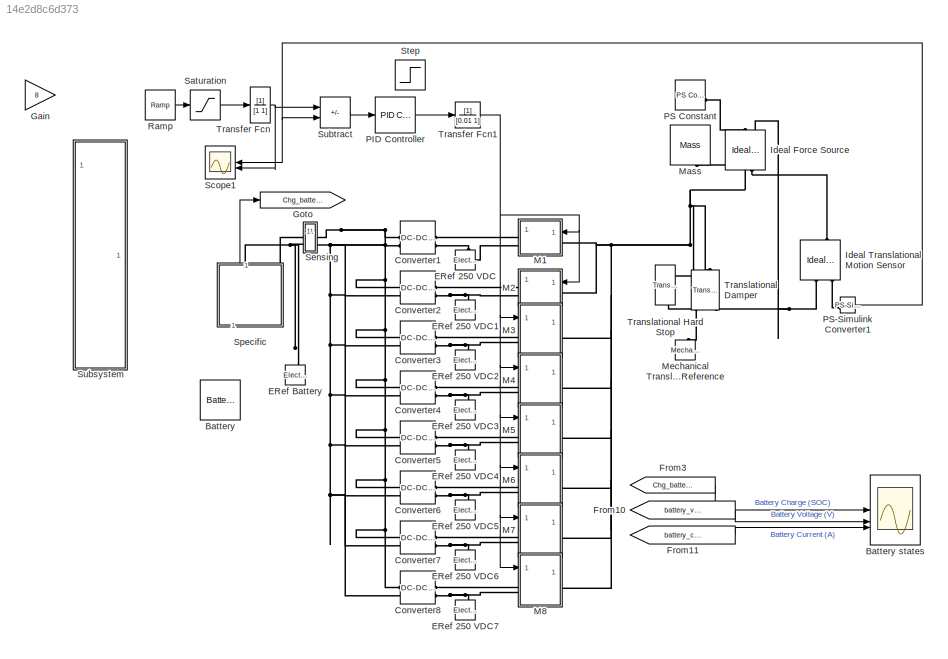
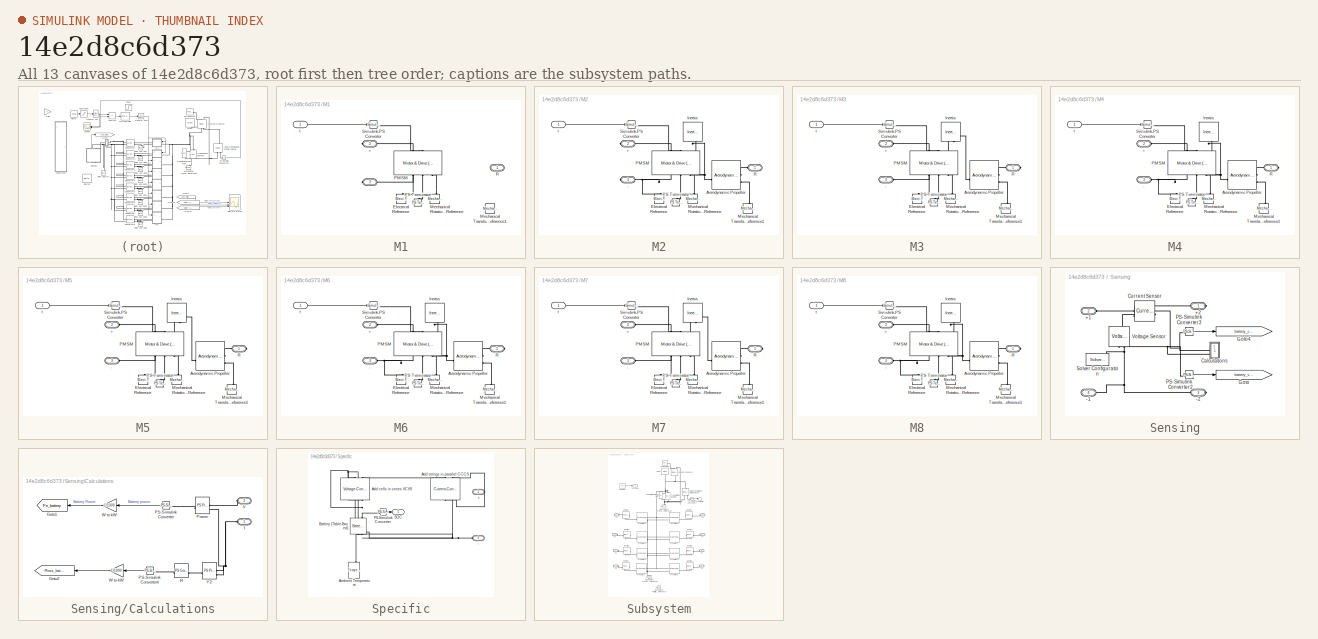
[diagram: thumbnail index - all 13 canvases of the model, root first then tree order]
MODEL slx_14e2d8c6d373
KIND model
CONFIG AbsTol = 1e-3
CONFIG SolverName = VariableStepAuto
CONFIG StopTime = 2000
BLOCK [Reference] Battery  REF=batteryecm_lib/Battery
  NameLocation = left
  SourceBlock = batteryecm_lib/Battery
  SourceType = Battery
BLOCK [Scope] Battery states
  ActiveDisplayYMaximum = 1.08046
  ActiveDisplayYMinimum = 0.22585
  DataLogging = on
  DataLoggingDecimateData = on
  DataLoggingDecimation = 1
  DataLoggingSaveFormat = Structure With Time
  Floating = off
  GraphicalSettings = {"GraphicalSettings":{"LegacySettings":true,"Style":{"AxesScalingProperties":{"ScaleAxesLimitsAtStop":false},"Style":{"AxesColor":"[0 0 0]","ChannelNames":["","",""],"ColorOrder":"[1 0.909803921568627 0.392156862745098;0.149019607843137 0.549019607843137 0.866666666666667;0.96078431372549 0.466666666666667 0.16078431372549;0.286274509803922 0.858823529411765 0.250980392156863;0.752941176470588 0.3...<+612ch>
  LayoutDimensionsString = [3 1]
  MultipleDisplayCache = [{"MaxYLimMag":1.08046,"MaxYLimReal":1.08046,"MinYLimMag":0.22585,"MinYLimReal":0.22585,"PlotAsMagnitudePhase":false,"ShowGrid":true,"ShowLegend":false,"Title":"%<SignalLabel>","YLabel":""},{"MaxYLimMag":161.12532,"MaxYLimReal":203.55726,"MinYLimMag":0,"MinYLimReal":161.00293,"PlotAsMagnitudePhase":false,"ShowGrid":true,"ShowLegend":false,"Title":"%<SignalLabel>","YLabel":""},{"MaxYLimMag":161.125...<+168ch>
  NumInputPorts = 3
  ScopeFrameLocation = window
  WasSavedAsWebScope = on
  WindowPosition = [488.000000,270.000000,560.000000,420.000000,]
BLOCK [Reference] Converter1  REF=ee_lib/Semiconductors &
Converters/Converters/DC-DC Converter
  SourceBlock = ee_lib/Semiconductors &\nConverters/Converters/DC-DC Converter
  SourceType = DC-DC Converter
BLOCK [Reference] Converter2  REF=ee_lib/Semiconductors &
Converters/Converters/DC-DC Converter
  SourceBlock = ee_lib/Semiconductors &\nConverters/Converters/DC-DC Converter
  SourceType = DC-DC Converter
BLOCK [Reference] Converter3  REF=ee_lib/Semiconductors &
Converters/Converters/DC-DC Converter
  SourceBlock = ee_lib/Semiconductors &\nConverters/Converters/DC-DC Converter
  SourceType = DC-DC Converter
BLOCK [Reference] Converter4  REF=ee_lib/Semiconductors &
Converters/Converters/DC-DC Converter
  SourceBlock = ee_lib/Semiconductors &\nConverters/Converters/DC-DC Converter
  SourceType = DC-DC Converter
BLOCK [Reference] Converter5  REF=ee_lib/Semiconductors &
Converters/Converters/DC-DC Converter
  SourceBlock = ee_lib/Semiconductors &\nConverters/Converters/DC-DC Converter
  SourceType = DC-DC Converter
BLOCK [Reference] Converter6  REF=ee_lib/Semiconductors &
Converters/Converters/DC-DC Converter
  SourceBlock = ee_lib/Semiconductors &\nConverters/Converters/DC-DC Converter
  SourceType = DC-DC Converter
BLOCK [Reference] Converter7  REF=ee_lib/Semiconductors &
Converters/Converters/DC-DC Converter
  SourceBlock = ee_lib/Semiconductors &\nConverters/Converters/DC-DC Converter
  SourceType = DC-DC Converter
BLOCK [Reference] Converter8  REF=ee_lib/Semiconductors &
Converters/Converters/DC-DC Converter
  SourceBlock = ee_lib/Semiconductors &\nConverters/Converters/DC-DC Converter
  SourceType = DC-DC Converter
BLOCK [Reference] ERef 250 VDC  REF=fl_lib/Electrical/Electrical Elements/Electrical Reference
  NameLocation = right
  SourceBlock = fl_lib/Electrical/Electrical Elements/Electrical Reference
  SourceType = Electrical Reference
BLOCK [Reference] ERef 250 VDC1  REF=fl_lib/Electrical/Electrical Elements/Electrical Reference
  NameLocation = right
  SourceBlock = fl_lib/Electrical/Electrical Elements/Electrical Reference
  SourceType = Electrical Reference
BLOCK [Reference] ERef 250 VDC2  REF=fl_lib/Electrical/Electrical Elements/Electrical Reference
  NameLocation = right
  SourceBlock = fl_lib/Electrical/Electrical Elements/Electrical Reference
  SourceType = Electrical Reference
BLOCK [Reference] ERef 250 VDC3  REF=fl_lib/Electrical/Electrical Elements/Electrical Reference
  NameLocation = right
  SourceBlock = fl_lib/Electrical/Electrical Elements/Electrical Reference
  SourceType = Electrical Reference
BLOCK [Reference] ERef 250 VDC4  REF=fl_lib/Electrical/Electrical Elements/Electrical Reference
  NameLocation = right
  SourceBlock = fl_lib/Electrical/Electrical Elements/Electrical Reference
  SourceType = Electrical Reference
BLOCK [Reference] ERef 250 VDC5  REF=fl_lib/Electrical/Electrical Elements/Electrical Reference
  NameLocation = right
  SourceBlock = fl_lib/Electrical/Electrical Elements/Electrical Reference
  SourceType = Electrical Reference
BLOCK [Reference] ERef 250 VDC6  REF=fl_lib/Electrical/Electrical Elements/Electrical Reference
  NameLocation = right
  SourceBlock = fl_lib/Electrical/Electrical Elements/Electrical Reference
  SourceType = Electrical Reference
BLOCK [Reference] ERef 250 VDC7  REF=fl_lib/Electrical/Electrical Elements/Electrical Reference
  NameLocation = right
  SourceBlock = fl_lib/Electrical/Electrical Elements/Electrical Reference
  SourceType = Electrical Reference
BLOCK [Reference] ERef Battery  REF=fl_lib/Electrical/Electrical Elements/Electrical Reference
  NameLocation = left
  SourceBlock = fl_lib/Electrical/Electrical Elements/Electrical Reference
  SourceType = Electrical Reference
BLOCK [From] From10
  GotoTag = battery_voltage
  TagVisibility = global
BLOCK [From] From11
  GotoTag = battery_current
  TagVisibility = global
BLOCK [From] From3
  GotoTag = Chg_battery
BLOCK [Gain] Gain
  Gain = 8
BLOCK [Goto] Goto
  GotoTag = Chg_battery
BLOCK [Reference] Ideal Force Source  REF=fl_lib/Mechanical/Mechanical Sources/Ideal Force Source
  NameLocation = left
  SourceBlock = fl_lib/Mechanical/Mechanical Sources/Ideal Force Source
  SourceType = Ideal Force Source
BLOCK [Reference] Ideal Translational Motion Sensor  REF=fl_lib/Mechanical/Mechanical Sensors/Ideal Translational
Motion Sensor
  NameLocation = left
  SourceBlock = fl_lib/Mechanical/Mechanical Sensors/Ideal Translational\nMotion Sensor
  SourceType = Ideal Translational\nMotion Sensor
BLOCK [SubSystem] M1
BLOCK [PMIOPort] M1/+
  Port = 2
  Side = Right
BLOCK [PMIOPort] M1/-
  Port = 3
  Side = Right
BLOCK [Reference] M1/Electrical Reference  REF=fl_lib/Electrical/Electrical Elements/Electrical Reference
  LibrarySourceBlock = ee_lib/Connectors &\nReferences/Electrical Reference
  NameLocation = right
  SourceBlock = fl_lib/Electrical/Electrical Elements/Electrical Reference
  SourceType = Electrical Reference
BLOCK [Reference] M1/Mechanical Rotational Reference  REF=fl_lib/Mechanical/Rotational Elements/Mechanical
Rotational Reference
  NameLocation = right
  SourceBlock = fl_lib/Mechanical/Rotational Elements/Mechanical\nRotational Reference
  SourceType = Mechanical\nRotational Reference
BLOCK [Reference] M1/Mechanical Translational Reference1  REF=fl_lib/Mechanical/Translational
Elements/Mechanical
Translational
Reference
  NameLocation = right
  SourceBlock = fl_lib/Mechanical/Translational\nElements/Mechanical\nTranslational\nReference
  SourceType = Mechanical\nTranslational\nReference
BLOCK [Reference] M1/PMSM  REF=ee_lib/Electromechanical/Motor & Drive
(System Level)
  NameLocation = left
  SourceBlock = ee_lib/Electromechanical/Motor & Drive\n(System Level)
  SourceType = Motor & Drive\n(System Level)
BLOCK [Reference] M1/PS Terminator  REF=fl_lib/Physical Signals/Sinks/PS Terminator
  NameLocation = left
  SourceBlock = fl_lib/Physical Signals/Sinks/PS Terminator
  SourceType = PS Terminator
BLOCK [PMIOPort] M1/R
  Side = Left
BLOCK [Reference] M1/Simulink-PS Converter  REF=nesl_utility/Simulink-PS
Converter
  SourceBlock = nesl_utility/Simulink-PS\nConverter
  SourceType = Simulink-PS\nConverter
BLOCK [Inport] M1/t
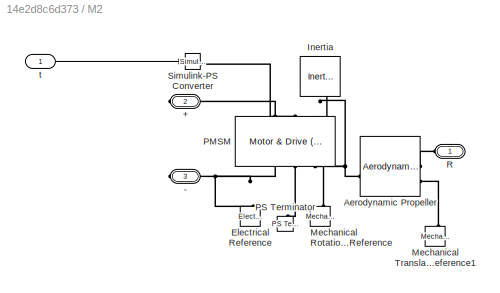
BLOCK [SubSystem] M2
BLOCK [PMIOPort] M2/+
  Port = 2
  Side = Right
BLOCK [PMIOPort] M2/-
  Port = 3
  Side = Right
BLOCK [Reference] M2/Aerodynamic Propeller  REF=sdl_lib/Engines & Motors/Aerodynamic
Propeller
  SourceBlock = sdl_lib/Engines & Motors/Aerodynamic\nPropeller
  SourceType = Aerodynamic\nPropeller
BLOCK [Reference] M2/Electrical Reference  REF=fl_lib/Electrical/Electrical Elements/Electrical Reference
  LibrarySourceBlock = ee_lib/Connectors &\nReferences/Electrical Reference
  NameLocation = right
  SourceBlock = fl_lib/Electrical/Electrical Elements/Electrical Reference
  SourceType = Electrical Reference
BLOCK [Reference] M2/Inertia  REF=fl_lib/Mechanical/Rotational Elements/Inertia
  NameLocation = right
  SourceBlock = fl_lib/Mechanical/Rotational Elements/Inertia
  SourceType = Inertia
BLOCK [Reference] M2/Mechanical Rotational Reference  REF=fl_lib/Mechanical/Rotational Elements/Mechanical
Rotational Reference
  NameLocation = right
  SourceBlock = fl_lib/Mechanical/Rotational Elements/Mechanical\nRotational Reference
  SourceType = Mechanical\nRotational Reference
BLOCK [Reference] M2/Mechanical Translational Reference1  REF=fl_lib/Mechanical/Translational
Elements/Mechanical
Translational
Reference
  NameLocation = right
  SourceBlock = fl_lib/Mechanical/Translational\nElements/Mechanical\nTranslational\nReference
  SourceType = Mechanical\nTranslational\nReference
BLOCK [Reference] M2/PMSM  REF=ee_lib/Electromechanical/Motor & Drive
(System Level)
  NameLocation = left
  SourceBlock = ee_lib/Electromechanical/Motor & Drive\n(System Level)
  SourceType = Motor & Drive\n(System Level)
BLOCK [Reference] M2/PS Terminator  REF=fl_lib/Physical Signals/Sinks/PS Terminator
  NameLocation = left
  SourceBlock = fl_lib/Physical Signals/Sinks/PS Terminator
  SourceType = PS Terminator
BLOCK [PMIOPort] M2/R
  Side = Left
BLOCK [Reference] M2/Simulink-PS Converter  REF=nesl_utility/Simulink-PS
Converter
  SourceBlock = nesl_utility/Simulink-PS\nConverter
  SourceType = Simulink-PS\nConverter
BLOCK [Inport] M2/t
BLOCK [SubSystem] M3
BLOCK [PMIOPort] M3/+
  Port = 2
  Side = Left
BLOCK [PMIOPort] M3/-
  Port = 3
  Side = Left
BLOCK [Reference] M3/Aerodynamic Propeller  REF=sdl_lib/Engines & Motors/Aerodynamic
Propeller
  SourceBlock = sdl_lib/Engines & Motors/Aerodynamic\nPropeller
  SourceType = Aerodynamic\nPropeller
BLOCK [Reference] M3/Electrical Reference  REF=fl_lib/Electrical/Electrical Elements/Electrical Reference
  LibrarySourceBlock = ee_lib/Connectors &\nReferences/Electrical Reference
  NameLocation = right
  SourceBlock = fl_lib/Electrical/Electrical Elements/Electrical Reference
  SourceType = Electrical Reference
BLOCK [Reference] M3/Inertia  REF=fl_lib/Mechanical/Rotational Elements/Inertia
  NameLocation = right
  SourceBlock = fl_lib/Mechanical/Rotational Elements/Inertia
  SourceType = Inertia
BLOCK [Reference] M3/Mechanical Rotational Reference  REF=fl_lib/Mechanical/Rotational Elements/Mechanical
Rotational Reference
  NameLocation = right
  SourceBlock = fl_lib/Mechanical/Rotational Elements/Mechanical\nRotational Reference
  SourceType = Mechanical\nRotational Reference
BLOCK [Reference] M3/Mechanical Translational Reference1  REF=fl_lib/Mechanical/Translational
Elements/Mechanical
Translational
Reference
  NameLocation = right
  SourceBlock = fl_lib/Mechanical/Translational\nElements/Mechanical\nTranslational\nReference
  SourceType = Mechanical\nTranslational\nReference
BLOCK [Reference] M3/PMSM  REF=ee_lib/Electromechanical/Motor & Drive
(System Level)
  NameLocation = left
  SourceBlock = ee_lib/Electromechanical/Motor & Drive\n(System Level)
  SourceType = Motor & Drive\n(System Level)
BLOCK [Reference] M3/PS Terminator  REF=fl_lib/Physical Signals/Sinks/PS Terminator
  NameLocation = left
  SourceBlock = fl_lib/Physical Signals/Sinks/PS Terminator
  SourceType = PS Terminator
BLOCK [PMIOPort] M3/R
  Side = Right
BLOCK [Reference] M3/Simulink-PS Converter  REF=nesl_utility/Simulink-PS
Converter
  SourceBlock = nesl_utility/Simulink-PS\nConverter
  SourceType = Simulink-PS\nConverter
BLOCK [Inport] M3/t
BLOCK [SubSystem] M4
BLOCK [PMIOPort] M4/+
  Port = 2
  Side = Left
BLOCK [PMIOPort] M4/-
  Port = 3
  Side = Left
BLOCK [Reference] M4/Aerodynamic Propeller  REF=sdl_lib/Engines & Motors/Aerodynamic
Propeller
  SourceBlock = sdl_lib/Engines & Motors/Aerodynamic\nPropeller
  SourceType = Aerodynamic\nPropeller
BLOCK [Reference] M4/Electrical Reference  REF=fl_lib/Electrical/Electrical Elements/Electrical Reference
  LibrarySourceBlock = ee_lib/Connectors &\nReferences/Electrical Reference
  NameLocation = right
  SourceBlock = fl_lib/Electrical/Electrical Elements/Electrical Reference
  SourceType = Electrical Reference
BLOCK [Reference] M4/Inertia  REF=fl_lib/Mechanical/Rotational Elements/Inertia
  NameLocation = right
  SourceBlock = fl_lib/Mechanical/Rotational Elements/Inertia
  SourceType = Inertia
BLOCK [Reference] M4/Mechanical Rotational Reference  REF=fl_lib/Mechanical/Rotational Elements/Mechanical
Rotational Reference
  NameLocation = right
  SourceBlock = fl_lib/Mechanical/Rotational Elements/Mechanical\nRotational Reference
  SourceType = Mechanical\nRotational Reference
BLOCK [Reference] M4/Mechanical Translational Reference1  REF=fl_lib/Mechanical/Translational
Elements/Mechanical
Translational
Reference
  NameLocation = right
  SourceBlock = fl_lib/Mechanical/Translational\nElements/Mechanical\nTranslational\nReference
  SourceType = Mechanical\nTranslational\nReference
BLOCK [Reference] M4/PMSM  REF=ee_lib/Electromechanical/Motor & Drive
(System Level)
  NameLocation = left
  SourceBlock = ee_lib/Electromechanical/Motor & Drive\n(System Level)
  SourceType = Motor & Drive\n(System Level)
BLOCK [Reference] M4/PS Terminator  REF=fl_lib/Physical Signals/Sinks/PS Terminator
  NameLocation = left
  SourceBlock = fl_lib/Physical Signals/Sinks/PS Terminator
  SourceType = PS Terminator
BLOCK [PMIOPort] M4/R
  Side = Right
BLOCK [Reference] M4/Simulink-PS Converter  REF=nesl_utility/Simulink-PS
Converter
  SourceBlock = nesl_utility/Simulink-PS\nConverter
  SourceType = Simulink-PS\nConverter
BLOCK [Inport] M4/t
BLOCK [SubSystem] M5
BLOCK [PMIOPort] M5/+
  Port = 2
  Side = Left
BLOCK [PMIOPort] M5/-
  Port = 3
  Side = Left
BLOCK [Reference] M5/Aerodynamic Propeller  REF=sdl_lib/Engines & Motors/Aerodynamic
Propeller
  SourceBlock = sdl_lib/Engines & Motors/Aerodynamic\nPropeller
  SourceType = Aerodynamic\nPropeller
BLOCK [Reference] M5/Electrical Reference  REF=fl_lib/Electrical/Electrical Elements/Electrical Reference
  LibrarySourceBlock = ee_lib/Connectors &\nReferences/Electrical Reference
  NameLocation = right
  SourceBlock = fl_lib/Electrical/Electrical Elements/Electrical Reference
  SourceType = Electrical Reference
BLOCK [Reference] M5/Inertia  REF=fl_lib/Mechanical/Rotational Elements/Inertia
  NameLocation = right
  SourceBlock = fl_lib/Mechanical/Rotational Elements/Inertia
  SourceType = Inertia
BLOCK [Reference] M5/Mechanical Rotational Reference  REF=fl_lib/Mechanical/Rotational Elements/Mechanical
Rotational Reference
  NameLocation = right
  SourceBlock = fl_lib/Mechanical/Rotational Elements/Mechanical\nRotational Reference
  SourceType = Mechanical\nRotational Reference
BLOCK [Reference] M5/Mechanical Translational Reference1  REF=fl_lib/Mechanical/Translational
Elements/Mechanical
Translational
Reference
  NameLocation = right
  SourceBlock = fl_lib/Mechanical/Translational\nElements/Mechanical\nTranslational\nReference
  SourceType = Mechanical\nTranslational\nReference
BLOCK [Reference] M5/PMSM  REF=ee_lib/Electromechanical/Motor & Drive
(System Level)
  NameLocation = left
  SourceBlock = ee_lib/Electromechanical/Motor & Drive\n(System Level)
  SourceType = Motor & Drive\n(System Level)
BLOCK [Reference] M5/PS Terminator  REF=fl_lib/Physical Signals/Sinks/PS Terminator
  NameLocation = left
  SourceBlock = fl_lib/Physical Signals/Sinks/PS Terminator
  SourceType = PS Terminator
BLOCK [PMIOPort] M5/R
  Side = Right
BLOCK [Reference] M5/Simulink-PS Converter  REF=nesl_utility/Simulink-PS
Converter
  SourceBlock = nesl_utility/Simulink-PS\nConverter
  SourceType = Simulink-PS\nConverter
BLOCK [Inport] M5/t
BLOCK [SubSystem] M6
BLOCK [PMIOPort] M6/+
  Port = 2
  Side = Left
BLOCK [PMIOPort] M6/-
  Port = 3
  Side = Left
BLOCK [Reference] M6/Aerodynamic Propeller  REF=sdl_lib/Engines & Motors/Aerodynamic
Propeller
  SourceBlock = sdl_lib/Engines & Motors/Aerodynamic\nPropeller
  SourceType = Aerodynamic\nPropeller
BLOCK [Reference] M6/Electrical Reference  REF=fl_lib/Electrical/Electrical Elements/Electrical Reference
  LibrarySourceBlock = ee_lib/Connectors &\nReferences/Electrical Reference
  NameLocation = right
  SourceBlock = fl_lib/Electrical/Electrical Elements/Electrical Reference
  SourceType = Electrical Reference
BLOCK [Reference] M6/Inertia  REF=fl_lib/Mechanical/Rotational Elements/Inertia
  NameLocation = right
  SourceBlock = fl_lib/Mechanical/Rotational Elements/Inertia
  SourceType = Inertia
BLOCK [Reference] M6/Mechanical Rotational Reference  REF=fl_lib/Mechanical/Rotational Elements/Mechanical
Rotational Reference
  NameLocation = right
  SourceBlock = fl_lib/Mechanical/Rotational Elements/Mechanical\nRotational Reference
  SourceType = Mechanical\nRotational Reference
BLOCK [Reference] M6/Mechanical Translational Reference1  REF=fl_lib/Mechanical/Translational
Elements/Mechanical
Translational
Reference
  NameLocation = right
  SourceBlock = fl_lib/Mechanical/Translational\nElements/Mechanical\nTranslational\nReference
  SourceType = Mechanical\nTranslational\nReference
BLOCK [Reference] M6/PMSM  REF=ee_lib/Electromechanical/Motor & Drive
(System Level)
  NameLocation = left
  SourceBlock = ee_lib/Electromechanical/Motor & Drive\n(System Level)
  SourceType = Motor & Drive\n(System Level)
BLOCK [Reference] M6/PS Terminator  REF=fl_lib/Physical Signals/Sinks/PS Terminator
  NameLocation = left
  SourceBlock = fl_lib/Physical Signals/Sinks/PS Terminator
  SourceType = PS Terminator
BLOCK [PMIOPort] M6/R
  Side = Right
BLOCK [Reference] M6/Simulink-PS Converter  REF=nesl_utility/Simulink-PS
Converter
  SourceBlock = nesl_utility/Simulink-PS\nConverter
  SourceType = Simulink-PS\nConverter
BLOCK [Inport] M6/t
BLOCK [SubSystem] M7
BLOCK [PMIOPort] M7/+
  Port = 2
  Side = Left
BLOCK [PMIOPort] M7/-
  Port = 3
  Side = Left
BLOCK [Reference] M7/Aerodynamic Propeller  REF=sdl_lib/Engines & Motors/Aerodynamic
Propeller
  SourceBlock = sdl_lib/Engines & Motors/Aerodynamic\nPropeller
  SourceType = Aerodynamic\nPropeller
BLOCK [Reference] M7/Electrical Reference  REF=fl_lib/Electrical/Electrical Elements/Electrical Reference
  LibrarySourceBlock = ee_lib/Connectors &\nReferences/Electrical Reference
  NameLocation = right
  SourceBlock = fl_lib/Electrical/Electrical Elements/Electrical Reference
  SourceType = Electrical Reference
BLOCK [Reference] M7/Inertia  REF=fl_lib/Mechanical/Rotational Elements/Inertia
  NameLocation = right
  SourceBlock = fl_lib/Mechanical/Rotational Elements/Inertia
  SourceType = Inertia
BLOCK [Reference] M7/Mechanical Rotational Reference  REF=fl_lib/Mechanical/Rotational Elements/Mechanical
Rotational Reference
  NameLocation = right
  SourceBlock = fl_lib/Mechanical/Rotational Elements/Mechanical\nRotational Reference
  SourceType = Mechanical\nRotational Reference
BLOCK [Reference] M7/Mechanical Translational Reference1  REF=fl_lib/Mechanical/Translational
Elements/Mechanical
Translational
Reference
  NameLocation = right
  SourceBlock = fl_lib/Mechanical/Translational\nElements/Mechanical\nTranslational\nReference
  SourceType = Mechanical\nTranslational\nReference
BLOCK [Reference] M7/PMSM  REF=ee_lib/Electromechanical/Motor & Drive
(System Level)
  NameLocation = left
  SourceBlock = ee_lib/Electromechanical/Motor & Drive\n(System Level)
  SourceType = Motor & Drive\n(System Level)
BLOCK [Reference] M7/PS Terminator  REF=fl_lib/Physical Signals/Sinks/PS Terminator
  NameLocation = left
  SourceBlock = fl_lib/Physical Signals/Sinks/PS Terminator
  SourceType = PS Terminator
BLOCK [PMIOPort] M7/R
  Side = Right
BLOCK [Reference] M7/Simulink-PS Converter  REF=nesl_utility/Simulink-PS
Converter
  SourceBlock = nesl_utility/Simulink-PS\nConverter
  SourceType = Simulink-PS\nConverter
BLOCK [Inport] M7/t
BLOCK [SubSystem] M8
BLOCK [PMIOPort] M8/+
  Port = 2
  Side = Left
BLOCK [PMIOPort] M8/-
  Port = 3
  Side = Left
BLOCK [Reference] M8/Aerodynamic Propeller  REF=sdl_lib/Engines & Motors/Aerodynamic
Propeller
  SourceBlock = sdl_lib/Engines & Motors/Aerodynamic\nPropeller
  SourceType = Aerodynamic\nPropeller
BLOCK [Reference] M8/Electrical Reference  REF=fl_lib/Electrical/Electrical Elements/Electrical Reference
  LibrarySourceBlock = ee_lib/Connectors &\nReferences/Electrical Reference
  NameLocation = right
  SourceBlock = fl_lib/Electrical/Electrical Elements/Electrical Reference
  SourceType = Electrical Reference
BLOCK [Reference] M8/Inertia  REF=fl_lib/Mechanical/Rotational Elements/Inertia
  NameLocation = right
  SourceBlock = fl_lib/Mechanical/Rotational Elements/Inertia
  SourceType = Inertia
BLOCK [Reference] M8/Mechanical Rotational Reference  REF=fl_lib/Mechanical/Rotational Elements/Mechanical
Rotational Reference
  NameLocation = right
  SourceBlock = fl_lib/Mechanical/Rotational Elements/Mechanical\nRotational Reference
  SourceType = Mechanical\nRotational Reference
BLOCK [Reference] M8/Mechanical Translational Reference1  REF=fl_lib/Mechanical/Translational
Elements/Mechanical
Translational
Reference
  NameLocation = right
  SourceBlock = fl_lib/Mechanical/Translational\nElements/Mechanical\nTranslational\nReference
  SourceType = Mechanical\nTranslational\nReference
BLOCK [Reference] M8/PMSM  REF=ee_lib/Electromechanical/Motor & Drive
(System Level)
  NameLocation = left
  SourceBlock = ee_lib/Electromechanical/Motor & Drive\n(System Level)
  SourceType = Motor & Drive\n(System Level)
BLOCK [Reference] M8/PS Terminator  REF=fl_lib/Physical Signals/Sinks/PS Terminator
  NameLocation = left
  SourceBlock = fl_lib/Physical Signals/Sinks/PS Terminator
  SourceType = PS Terminator
BLOCK [PMIOPort] M8/R
  Side = Right
BLOCK [Reference] M8/Simulink-PS Converter  REF=nesl_utility/Simulink-PS
Converter
  SourceBlock = nesl_utility/Simulink-PS\nConverter
  SourceType = Simulink-PS\nConverter
BLOCK [Inport] M8/t
BLOCK [Reference] Mass  REF=fl_lib/Mechanical/Translational
Elements/Mass
  NameLocation = left
  SourceBlock = fl_lib/Mechanical/Translational\nElements/Mass
  SourceType = Mass
BLOCK [Reference] Mechanical Translational Reference  REF=fl_lib/Mechanical/Translational
Elements/Mechanical
Translational
Reference
  NameLocation = right
  SourceBlock = fl_lib/Mechanical/Translational\nElements/Mechanical\nTranslational\nReference
  SourceType = Mechanical\nTranslational\nReference
BLOCK [Reference] PID Controller  REF=slpidlib/PID Controller
  LibrarySourceBlock = simulink/Continuous/PID Controller
  SourceBlock = slpidlib/PID Controller
  SourceType = PID 1dof
BLOCK [Reference] PS Constant  REF=fl_lib/Physical Signals/Sources/PS Constant
  SourceBlock = fl_lib/Physical Signals/Sources/PS Constant
  SourceType = PS Constant
BLOCK [Reference] PS-Simulink Converter1  REF=nesl_utility/PS-Simulink
Converter
  SourceBlock = nesl_utility/PS-Simulink\nConverter
  SourceType = PS-Simulink\nConverter
BLOCK [Reference] Ramp  REF=simulink/Sources/Ramp
  SourceBlock = simulink/Sources/Ramp
  SourceType = Ramp
BLOCK [Saturate] Saturation
  UpperLimit = 100
  ZeroCross = off
BLOCK [Scope] Scope1
  ActiveDisplayYMaximum = 112.50006
  ActiveDisplayYMinimum = -12.50057
  DataLoggingVariableName = ScopeData1
  Floating = off
  GraphicalSettings = {"GraphicalSettings":{"LegacySettings":true,"Style":{"AxesScalingProperties":{"ScaleAxesLimitsAtStop":false},"Style":{"AxesColor":"[0 0 0]","ChannelNames":[""],"ColorOrder":"[1 0.909803921568627 0.392156862745098;0.149019607843137 0.549019607843137 0.866666666666667;0.96078431372549 0.466666666666667 0.16078431372549;0.286274509803922 0.858823529411765 0.250980392156863;0.752941176470588 0.3607843...<+548ch>
  MultipleDisplayCache = [{"MaxYLimMag":112.50006,"MaxYLimReal":112.50006,"MinYLimMag":0,"MinYLimReal":-12.50057,"PlotAsMagnitudePhase":false,"ShowGrid":true,"ShowLegend":false,"Title":"%<SignalLabel>","YLabel":""}]
  NumInputPorts = 2
  ScopeFrameLocation = window
  WasSavedAsWebScope = on
  WindowPosition = [488.000000,270.000000,560.000000,420.000000,]
BLOCK [SubSystem] Sensing
BLOCK [PMIOPort] Sensing/+1
  Port = 2
  Side = Left
BLOCK [PMIOPort] Sensing/+2
  Side = Right
BLOCK [PMIOPort] Sensing/-1
  Port = 4
  Side = Left
BLOCK [PMIOPort] Sensing/-2
  Port = 3
  Side = Right
BLOCK [SubSystem] Sensing/Calculations
BLOCK [Gain] Sensing/Calculations/ W to kW 
  Gain = 1/1000
BLOCK [Goto] Sensing/Calculations/Goto1
  GotoTag = Pe_battery
  TagVisibility = global
BLOCK [Goto] Sensing/Calculations/Goto2
  GotoTag = Ploss_battery
  NameLocation = top
  TagVisibility = global
BLOCK [PMIOPort] Sensing/Calculations/I
  Side = Left
BLOCK [Reference] Sensing/Calculations/I^2  REF=fl_lib/Physical Signals/Functions/PS Product
  SourceBlock = fl_lib/Physical Signals/Functions/PS Product
  SourceType = PS Product
BLOCK [Reference] Sensing/Calculations/PS-Simulink Converter  REF=nesl_utility/PS-Simulink
Converter
  SourceBlock = nesl_utility/PS-Simulink\nConverter
  SourceType = PS-Simulink\nConverter
BLOCK [Reference] Sensing/Calculations/PS-Simulink Converter4  REF=nesl_utility/PS-Simulink
Converter
  NameLocation = top
  SourceBlock = nesl_utility/PS-Simulink\nConverter
  SourceType = PS-Simulink\nConverter
BLOCK [Reference] Sensing/Calculations/Power  REF=fl_lib/Physical Signals/Functions/PS Product
  SourceBlock = fl_lib/Physical Signals/Functions/PS Product
  SourceType = PS Product
BLOCK [Reference] Sensing/Calculations/R  REF=fl_lib/Physical Signals/Functions/PS Gain
  SourceBlock = fl_lib/Physical Signals/Functions/PS Gain
  SourceType = PS Gain
BLOCK [PMIOPort] Sensing/Calculations/V
  Port = 2
  Side = Left
BLOCK [Gain] Sensing/Calculations/W to kW
  Gain = 1/1000
BLOCK [Reference] Sensing/Current Sensor  REF=fl_lib/Electrical/Electrical Sensors/Current Sensor
  SourceBlock = fl_lib/Electrical/Electrical Sensors/Current Sensor
  SourceType = Current Sensor
BLOCK [Goto] Sensing/Goto
  GotoTag = battery_voltage
  TagVisibility = global
BLOCK [Goto] Sensing/Goto4
  GotoTag = battery_current
  TagVisibility = global
BLOCK [Reference] Sensing/PS-Simulink Converter2  REF=nesl_utility/PS-Simulink
Converter
  SourceBlock = nesl_utility/PS-Simulink\nConverter
  SourceType = PS-Simulink\nConverter
BLOCK [Reference] Sensing/PS-Simulink Converter3  REF=nesl_utility/PS-Simulink
Converter
  SourceBlock = nesl_utility/PS-Simulink\nConverter
  SourceType = PS-Simulink\nConverter
BLOCK [Reference] Sensing/Solver Configuration  REF=nesl_utility/Solver
Configuration
  NameLocation = top
  SourceBlock = nesl_utility/Solver\nConfiguration
  SourceType = Solver\nConfiguration
BLOCK [Reference] Sensing/Voltage Sensor  REF=fl_lib/Electrical/Electrical Sensors/Voltage Sensor
  NameLocation = right
  SourceBlock = fl_lib/Electrical/Electrical Sensors/Voltage Sensor
  SourceType = Voltage Sensor
BLOCK [SubSystem] Specific
  VariantControl = Specific
BLOCK [PMIOPort] Specific/+
  Side = Right
BLOCK [PMIOPort] Specific/-
  Port = 2
  Side = Left
BLOCK [Reference] Specific/Add cells in series VCVS  REF=fl_lib/Electrical/Electrical Sources/Voltage-Controlled
Voltage Source
  NameLocation = right
  SourceBlock = fl_lib/Electrical/Electrical Sources/Voltage-Controlled\nVoltage Source
  SourceType = Voltage-Controlled\nVoltage Source
BLOCK [Reference] Specific/Add strings in parallel CCCS  REF=fl_lib/Electrical/Electrical Sources/Current-Controlled
Current Source
  NameLocation = left
  SourceBlock = fl_lib/Electrical/Electrical Sources/Current-Controlled\nCurrent Source
  SourceType = Current-Controlled\nCurrent Source
BLOCK [Reference] Specific/Ambient Temperature  REF=fl_lib/Thermal/Thermal Sources/Temperature Source
  NameLocation = right
  SourceBlock = fl_lib/Thermal/Thermal Sources/Temperature Source
  SourceType = Temperature Source
BLOCK [Reference] Specific/Battery (Table-Based)  REF=batteryecm_lib/Battery
(Table-Based)
  NameLocation = right
  SourceBlock = batteryecm_lib/Battery\n(Table-Based)
  SourceType = Battery\n(Table-Based)
BLOCK [Reference] Specific/PS-Simulink Converter  REF=nesl_utility/PS-Simulink
Converter
  SourceBlock = nesl_utility/PS-Simulink\nConverter
  SourceType = PS-Simulink\nConverter
BLOCK [Outport] Specific/SOC
BLOCK [Step] Step
  Commented = on
  FinalValue = t_hold
  InitialValue = t_hold+t_lift
  SampleTime = 0
  Time = 30
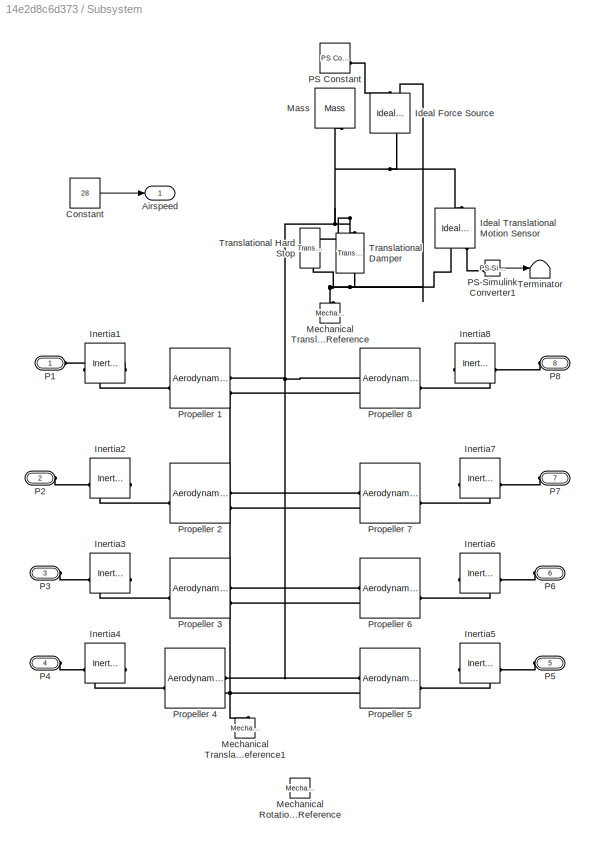
BLOCK [SubSystem] Subsystem
  Commented = on
BLOCK [Outport] Subsystem/Airspeed
BLOCK [Constant] Subsystem/Constant
  Value = 28
BLOCK [Reference] Subsystem/Ideal Force Source  REF=fl_lib/Mechanical/Mechanical Sources/Ideal Force Source
  NameLocation = left
  SourceBlock = fl_lib/Mechanical/Mechanical Sources/Ideal Force Source
  SourceType = Ideal Force Source
BLOCK [Reference] Subsystem/Ideal Translational Motion Sensor  REF=fl_lib/Mechanical/Mechanical Sensors/Ideal Translational
Motion Sensor
  NameLocation = left
  SourceBlock = fl_lib/Mechanical/Mechanical Sensors/Ideal Translational\nMotion Sensor
  SourceType = Ideal Translational\nMotion Sensor
BLOCK [Reference] Subsystem/Inertia1  REF=fl_lib/Mechanical/Rotational Elements/Inertia
  SourceBlock = fl_lib/Mechanical/Rotational Elements/Inertia
  SourceType = Inertia
BLOCK [Reference] Subsystem/Inertia2  REF=fl_lib/Mechanical/Rotational Elements/Inertia
  SourceBlock = fl_lib/Mechanical/Rotational Elements/Inertia
  SourceType = Inertia
BLOCK [Reference] Subsystem/Inertia3  REF=fl_lib/Mechanical/Rotational Elements/Inertia
  SourceBlock = fl_lib/Mechanical/Rotational Elements/Inertia
  SourceType = Inertia
BLOCK [Reference] Subsystem/Inertia4  REF=fl_lib/Mechanical/Rotational Elements/Inertia
  SourceBlock = fl_lib/Mechanical/Rotational Elements/Inertia
  SourceType = Inertia
BLOCK [Reference] Subsystem/Inertia5  REF=fl_lib/Mechanical/Rotational Elements/Inertia
  SourceBlock = fl_lib/Mechanical/Rotational Elements/Inertia
  SourceType = Inertia
BLOCK [Reference] Subsystem/Inertia6  REF=fl_lib/Mechanical/Rotational Elements/Inertia
  SourceBlock = fl_lib/Mechanical/Rotational Elements/Inertia
  SourceType = Inertia
BLOCK [Reference] Subsystem/Inertia7  REF=fl_lib/Mechanical/Rotational Elements/Inertia
  SourceBlock = fl_lib/Mechanical/Rotational Elements/Inertia
  SourceType = Inertia
BLOCK [Reference] Subsystem/Inertia8  REF=fl_lib/Mechanical/Rotational Elements/Inertia
  SourceBlock = fl_lib/Mechanical/Rotational Elements/Inertia
  SourceType = Inertia
BLOCK [Reference] Subsystem/Mass  REF=fl_lib/Mechanical/Translational
Elements/Mass
  NameLocation = left
  SourceBlock = fl_lib/Mechanical/Translational\nElements/Mass
  SourceType = Mass
BLOCK [Reference] Subsystem/Mechanical Rotational Reference  REF=fl_lib/Mechanical/Rotational Elements/Mechanical
Rotational Reference
  NameLocation = right
  SourceBlock = fl_lib/Mechanical/Rotational Elements/Mechanical\nRotational Reference
  SourceType = Mechanical\nRotational Reference
BLOCK [Reference] Subsystem/Mechanical Translational Reference  REF=fl_lib/Mechanical/Translational
Elements/Mechanical
Translational
Reference
  NameLocation = right
  SourceBlock = fl_lib/Mechanical/Translational\nElements/Mechanical\nTranslational\nReference
  SourceType = Mechanical\nTranslational\nReference
BLOCK [Reference] Subsystem/Mechanical Translational Reference1  REF=fl_lib/Mechanical/Translational
Elements/Mechanical
Translational
Reference
  NameLocation = right
  SourceBlock = fl_lib/Mechanical/Translational\nElements/Mechanical\nTranslational\nReference
  SourceType = Mechanical\nTranslational\nReference
BLOCK [PMIOPort] Subsystem/P1
  Side = Left
BLOCK [PMIOPort] Subsystem/P2
  Port = 2
  Side = Left
BLOCK [PMIOPort] Subsystem/P3
  Port = 3
  Side = Left
BLOCK [PMIOPort] Subsystem/P4
  Port = 4
  Side = Left
BLOCK [PMIOPort] Subsystem/P5
  Port = 5
  Side = Left
BLOCK [PMIOPort] Subsystem/P6
  Port = 6
  Side = Left
BLOCK [PMIOPort] Subsystem/P7
  Port = 7
  Side = Left
BLOCK [PMIOPort] Subsystem/P8
  Port = 8
  Side = Left
BLOCK [Reference] Subsystem/PS Constant  REF=fl_lib/Physical Signals/Sources/PS Constant
  SourceBlock = fl_lib/Physical Signals/Sources/PS Constant
  SourceType = PS Constant
BLOCK [Reference] Subsystem/PS-Simulink Converter1  REF=nesl_utility/PS-Simulink
Converter
  SourceBlock = nesl_utility/PS-Simulink\nConverter
  SourceType = PS-Simulink\nConverter
BLOCK [Reference] Subsystem/Propeller 1  REF=sdl_lib/Engines & Motors/Aerodynamic
Propeller
  SourceBlock = sdl_lib/Engines & Motors/Aerodynamic\nPropeller
  SourceType = Aerodynamic\nPropeller
BLOCK [Reference] Subsystem/Propeller 2  REF=sdl_lib/Engines & Motors/Aerodynamic
Propeller
  SourceBlock = sdl_lib/Engines & Motors/Aerodynamic\nPropeller
  SourceType = Aerodynamic\nPropeller
BLOCK [Reference] Subsystem/Propeller 3  REF=sdl_lib/Engines & Motors/Aerodynamic
Propeller
  SourceBlock = sdl_lib/Engines & Motors/Aerodynamic\nPropeller
  SourceType = Aerodynamic\nPropeller
BLOCK [Reference] Subsystem/Propeller 4  REF=sdl_lib/Engines & Motors/Aerodynamic
Propeller
  SourceBlock = sdl_lib/Engines & Motors/Aerodynamic\nPropeller
  SourceType = Aerodynamic\nPropeller
BLOCK [Reference] Subsystem/Propeller 5  REF=sdl_lib/Engines & Motors/Aerodynamic
Propeller
  SourceBlock = sdl_lib/Engines & Motors/Aerodynamic\nPropeller
  SourceType = Aerodynamic\nPropeller
BLOCK [Reference] Subsystem/Propeller 6  REF=sdl_lib/Engines & Motors/Aerodynamic
Propeller
  SourceBlock = sdl_lib/Engines & Motors/Aerodynamic\nPropeller
  SourceType = Aerodynamic\nPropeller
BLOCK [Reference] Subsystem/Propeller 7  REF=sdl_lib/Engines & Motors/Aerodynamic
Propeller
  SourceBlock = sdl_lib/Engines & Motors/Aerodynamic\nPropeller
  SourceType = Aerodynamic\nPropeller
BLOCK [Reference] Subsystem/Propeller 8  REF=sdl_lib/Engines & Motors/Aerodynamic
Propeller
  SourceBlock = sdl_lib/Engines & Motors/Aerodynamic\nPropeller
  SourceType = Aerodynamic\nPropeller
BLOCK [Terminator] Subsystem/Terminator
BLOCK [Reference] Subsystem/Translational Damper  REF=fl_lib/Mechanical/Translational
Elements/Translational Damper
  NameLocation = left
  SourceBlock = fl_lib/Mechanical/Translational\nElements/Translational Damper
  SourceType = Translational Damper
BLOCK [Reference] Subsystem/Translational Hard Stop  REF=fl_lib/Mechanical/Translational
Elements/Translational Hard
Stop
  NameLocation = left
  SourceBlock = fl_lib/Mechanical/Translational\nElements/Translational Hard\nStop
  SourceType = Translational Hard\nStop
BLOCK [Sum] Subtract
  IconShape = rectangular
  Inputs = +-
BLOCK [TransferFcn] Transfer Fcn
  Denominator = [1 1]
BLOCK [TransferFcn] Transfer Fcn1
  Denominator = [0.01 1]
BLOCK [Reference] Translational Damper  REF=fl_lib/Mechanical/Translational
Elements/Translational Damper
  NameLocation = left
  SourceBlock = fl_lib/Mechanical/Translational\nElements/Translational Damper
  SourceType = Translational Damper
BLOCK [Reference] Translational Hard Stop  REF=fl_lib/Mechanical/Translational
Elements/Translational Hard
Stop
  NameLocation = left
  SourceBlock = fl_lib/Mechanical/Translational\nElements/Translational Hard\nStop
  SourceType = Translational Hard\nStop
LINE From10:1 -> Battery states:2
LINE From11:1 -> Battery states:3
LINE From3:1 -> Battery states:1
LINE M1/t:1 -> M1/Simulink-PS Converter:1
LINE M2/t:1 -> M2/Simulink-PS Converter:1
LINE M3/t:1 -> M3/Simulink-PS Converter:1
LINE M4/t:1 -> M4/Simulink-PS Converter:1
LINE M5/t:1 -> M5/Simulink-PS Converter:1
LINE M6/t:1 -> M6/Simulink-PS Converter:1
LINE M7/t:1 -> M7/Simulink-PS Converter:1
LINE M8/t:1 -> M8/Simulink-PS Converter:1
LINE PID Controller:1 -> Transfer Fcn1:1
NET PS-Simulink Converter1:1 -> Scope1:1, Subtract:2
LINE Ramp:1 -> Saturation:1
LINE Saturation:1 -> Transfer Fcn:1
LINE Sensing/Calculations/ W to kW :1 -> Sensing/Calculations/Goto2:1
LINE Sensing/Calculations/PS-Simulink Converter4:1 -> Sensing/Calculations/ W to kW :1
LINE Sensing/Calculations/PS-Simulink Converter:1 -> Sensing/Calculations/W to kW:1
LINE Sensing/Calculations/W to kW:1 -> Sensing/Calculations/Goto1:1
LINE Sensing/PS-Simulink Converter2:1 -> Sensing/Goto:1
LINE Sensing/PS-Simulink Converter3:1 -> Sensing/Goto4:1
LINE Specific/PS-Simulink Converter:1 -> Specific/SOC:1
LINE Specific:1 -> Goto:1
LINE Subsystem/Constant:1 -> Subsystem/Airspeed:1
LINE Subsystem/PS-Simulink Converter1:1 -> Subsystem/Terminator:1
LINE Subtract:1 -> PID Controller:1
NET Transfer Fcn1:1 -> M1:1, M2:1, M3:1, M4:1, M5:1, M6:1, M7:1, M8:1
NET Transfer Fcn:1 -> Scope1:2, Subtract:1
PNET net1: Converter1:LConn1 -- Converter2:LConn1 -- Converter3:LConn1 -- Converter4:LConn1 -- Converter5:LConn1 -- Converter6:LConn1 -- Converter7:LConn1 -- Converter8:LConn1 -- Sensing:RConn1
PNET net2: Converter1:LConn2 -- Converter2:LConn2 -- Converter3:LConn2 -- Converter4:LConn2 -- Converter5:LConn2 -- Converter6:LConn2 -- Converter7:LConn2 -- Converter8:LConn2 -- Sensing:RConn2
PLINE Converter1:RConn1 -- M1:RConn1
PNET net3: Converter1:RConn2 -- ERef 250 VDC:LConn1 -- M1:RConn2
PLINE Converter2:RConn1 -- M2:RConn1
PNET net4: Converter2:RConn2 -- ERef 250 VDC1:LConn1 -- M2:RConn2
PLINE Converter3:RConn1 -- M3:LConn1
PNET net5: Converter3:RConn2 -- ERef 250 VDC2:LConn1 -- M3:LConn2
PLINE Converter4:RConn1 -- M4:LConn1
PNET net6: Converter4:RConn2 -- ERef 250 VDC3:LConn1 -- M4:LConn2
PLINE Converter5:RConn1 -- M5:LConn1
PNET net7: Converter5:RConn2 -- ERef 250 VDC4:LConn1 -- M5:LConn2
PLINE Converter6:RConn1 -- M6:LConn1
PNET net8: Converter6:RConn2 -- ERef 250 VDC5:LConn1 -- M6:LConn2
PLINE Converter7:RConn1 -- M7:LConn1
PNET net9: Converter7:RConn2 -- ERef 250 VDC6:LConn1 -- M7:LConn2
PLINE Converter8:RConn1 -- M8:LConn1
PNET net10: Converter8:RConn2 -- ERef 250 VDC7:LConn1 -- M8:LConn2
PNET net11: ERef Battery:LConn1 -- Sensing:LConn2 -- Specific:LConn1
PNET net12: Ideal Force Source:LConn1 -- Ideal Translational Motion Sensor:LConn1 -- M1:LConn1 -- M2:LConn1 -- M3:RConn1 -- M4:RConn1 -- M5:RConn1 -- M6:RConn1 -- M7:RConn1 -- M8:RConn1 -- Mass:LConn1 -- Translational Damper:LConn1 -- Translational Hard Stop:LConn1
PLINE Ideal Force Source:RConn1 -- PS Constant:RConn1
PNET net13: Ideal Force Source:RConn2 -- Ideal Translational Motion Sensor:RConn1 -- Mechanical Translational Reference:LConn1 -- Translational Damper:RConn1 -- Translational Hard Stop:RConn1
PLINE Ideal Translational Motion Sensor:RConn3 -- PS-Simulink Converter1:LConn1
PLINE M1/+:RConn1 -- M1/PMSM:LConn1
PNET net14: M1/-:RConn1 -- M1/Electrical Reference:LConn1 -- M1/PMSM:RConn1
PLINE M1/Mechanical Rotational Reference:LConn1 -- M1/PMSM:RConn3
PLINE M1/PMSM:LConn2 -- M1/Simulink-PS Converter:RConn1
PLINE M1/PMSM:RConn2 -- M1/PS Terminator:LConn1
PLINE M2/+:RConn1 -- M2/PMSM:LConn1
PNET net15: M2/-:RConn1 -- M2/Electrical Reference:LConn1 -- M2/PMSM:RConn1
PNET net16: M2/Aerodynamic Propeller:LConn1 -- M2/Inertia:LConn1 -- M2/PMSM:LConn3
PLINE M2/Aerodynamic Propeller:RConn1 -- M2/R:RConn1
PLINE M2/Aerodynamic Propeller:RConn2 -- M2/Mechanical Translational Reference1:LConn1
PLINE M2/Mechanical Rotational Reference:LConn1 -- M2/PMSM:RConn3
PLINE M2/PMSM:LConn2 -- M2/Simulink-PS Converter:RConn1
PLINE M2/PMSM:RConn2 -- M2/PS Terminator:LConn1
PLINE M3/+:RConn1 -- M3/PMSM:LConn1
PNET net17: M3/-:RConn1 -- M3/Electrical Reference:LConn1 -- M3/PMSM:RConn1
PNET net18: M3/Aerodynamic Propeller:LConn1 -- M3/Inertia:LConn1 -- M3/PMSM:LConn3
PLINE M3/Aerodynamic Propeller:RConn1 -- M3/R:RConn1
PLINE M3/Aerodynamic Propeller:RConn2 -- M3/Mechanical Translational Reference1:LConn1
PLINE M3/Mechanical Rotational Reference:LConn1 -- M3/PMSM:RConn3
PLINE M3/PMSM:LConn2 -- M3/Simulink-PS Converter:RConn1
PLINE M3/PMSM:RConn2 -- M3/PS Terminator:LConn1
PLINE M4/+:RConn1 -- M4/PMSM:LConn1
PNET net19: M4/-:RConn1 -- M4/Electrical Reference:LConn1 -- M4/PMSM:RConn1
PNET net20: M4/Aerodynamic Propeller:LConn1 -- M4/Inertia:LConn1 -- M4/PMSM:LConn3
PLINE M4/Aerodynamic Propeller:RConn1 -- M4/R:RConn1
PLINE M4/Aerodynamic Propeller:RConn2 -- M4/Mechanical Translational Reference1:LConn1
PLINE M4/Mechanical Rotational Reference:LConn1 -- M4/PMSM:RConn3
PLINE M4/PMSM:LConn2 -- M4/Simulink-PS Converter:RConn1
PLINE M4/PMSM:RConn2 -- M4/PS Terminator:LConn1
PLINE M5/+:RConn1 -- M5/PMSM:LConn1
PNET net21: M5/-:RConn1 -- M5/Electrical Reference:LConn1 -- M5/PMSM:RConn1
PNET net22: M5/Aerodynamic Propeller:LConn1 -- M5/Inertia:LConn1 -- M5/PMSM:LConn3
PLINE M5/Aerodynamic Propeller:RConn1 -- M5/R:RConn1
PLINE M5/Aerodynamic Propeller:RConn2 -- M5/Mechanical Translational Reference1:LConn1
PLINE M5/Mechanical Rotational Reference:LConn1 -- M5/PMSM:RConn3
PLINE M5/PMSM:LConn2 -- M5/Simulink-PS Converter:RConn1
PLINE M5/PMSM:RConn2 -- M5/PS Terminator:LConn1
PLINE M6/+:RConn1 -- M6/PMSM:LConn1
PNET net23: M6/-:RConn1 -- M6/Electrical Reference:LConn1 -- M6/PMSM:RConn1
PNET net24: M6/Aerodynamic Propeller:LConn1 -- M6/Inertia:LConn1 -- M6/PMSM:LConn3
PLINE M6/Aerodynamic Propeller:RConn1 -- M6/R:RConn1
PLINE M6/Aerodynamic Propeller:RConn2 -- M6/Mechanical Translational Reference1:LConn1
PLINE M6/Mechanical Rotational Reference:LConn1 -- M6/PMSM:RConn3
PLINE M6/PMSM:LConn2 -- M6/Simulink-PS Converter:RConn1
PLINE M6/PMSM:RConn2 -- M6/PS Terminator:LConn1
PLINE M7/+:RConn1 -- M7/PMSM:LConn1
PNET net25: M7/-:RConn1 -- M7/Electrical Reference:LConn1 -- M7/PMSM:RConn1
PNET net26: M7/Aerodynamic Propeller:LConn1 -- M7/Inertia:LConn1 -- M7/PMSM:LConn3
PLINE M7/Aerodynamic Propeller:RConn1 -- M7/R:RConn1
PLINE M7/Aerodynamic Propeller:RConn2 -- M7/Mechanical Translational Reference1:LConn1
PLINE M7/Mechanical Rotational Reference:LConn1 -- M7/PMSM:RConn3
PLINE M7/PMSM:LConn2 -- M7/Simulink-PS Converter:RConn1
PLINE M7/PMSM:RConn2 -- M7/PS Terminator:LConn1
PLINE M8/+:RConn1 -- M8/PMSM:LConn1
PNET net27: M8/-:RConn1 -- M8/Electrical Reference:LConn1 -- M8/PMSM:RConn1
PNET net28: M8/Aerodynamic Propeller:LConn1 -- M8/Inertia:LConn1 -- M8/PMSM:LConn3
PLINE M8/Aerodynamic Propeller:RConn1 -- M8/R:RConn1
PLINE M8/Aerodynamic Propeller:RConn2 -- M8/Mechanical Translational Reference1:LConn1
PLINE M8/Mechanical Rotational Reference:LConn1 -- M8/PMSM:RConn3
PLINE M8/PMSM:LConn2 -- M8/Simulink-PS Converter:RConn1
PLINE M8/PMSM:RConn2 -- M8/PS Terminator:LConn1
PNET net29: Sensing/+1:RConn1 -- Sensing/Current Sensor:LConn1 -- Sensing/Voltage Sensor:LConn1
PLINE Sensing/+2:RConn1 -- Sensing/Current Sensor:RConn2
PNET net30: Sensing/-1:RConn1 -- Sensing/-2:RConn1 -- Sensing/Solver Configuration:RConn1 -- Sensing/Voltage Sensor:RConn2
PNET net31: Sensing/Calculations/I:RConn1 -- Sensing/Calculations/I^2:LConn1 -- Sensing/Calculations/I^2:LConn2 -- Sensing/Calculations/Power:LConn2
PLINE Sensing/Calculations/I^2:RConn1 -- Sensing/Calculations/R:LConn1
PLINE Sensing/Calculations/PS-Simulink Converter4:LConn1 -- Sensing/Calculations/R:RConn1
PLINE Sensing/Calculations/PS-Simulink Converter:LConn1 -- Sensing/Calculations/Power:RConn1
PLINE Sensing/Calculations/Power:LConn1 -- Sensing/Calculations/V:RConn1
PNET net32: Sensing/Calculations:LConn1 -- Sensing/Current Sensor:RConn1 -- Sensing/PS-Simulink Converter3:LConn1
PNET net33: Sensing/Calculations:LConn2 -- Sensing/PS-Simulink Converter2:LConn1 -- Sensing/Voltage Sensor:RConn1
PLINE Sensing:LConn1 -- Specific:RConn1
PNET net34: Specific/+:RConn1 -- Specific/Add strings in parallel CCCS:LConn2 -- Specific/Add strings in parallel CCCS:RConn1
PNET net35: Specific/-:RConn1 -- Specific/Add cells in series VCVS:RConn1 -- Specific/Add strings in parallel CCCS:RConn2 -- Specific/Battery (Table-Based):RConn1
PNET net36: Specific/Add cells in series VCVS:LConn1 -- Specific/Add cells in series VCVS:RConn2 -- Specific/Battery (Table-Based):LConn1
PLINE Specific/Add cells in series VCVS:LConn2 -- Specific/Add strings in parallel CCCS:LConn1
PLINE Specific/Ambient Temperature:LConn1 -- Specific/Battery (Table-Based):RConn2
PLINE Specific/Battery (Table-Based):LConn2 -- Specific/PS-Simulink Converter:LConn1
PNET net37: Subsystem/Ideal Force Source:LConn1 -- Subsystem/Ideal Translational Motion Sensor:LConn1 -- Subsystem/Mass:LConn1 -- Subsystem/Propeller 1:RConn1 -- Subsystem/Propeller 2:RConn1 -- Subsystem/Propeller 3:RConn1 -- Subsystem/Propeller 4:RConn1 -- Subsystem/Propeller 5:RConn1 -- Subsystem/Propeller 6:RConn1 -- Subsystem/Propeller 7:RConn1 -- Subsystem/Propeller 8:RConn1 -- Subsystem/Translational Damper:LConn1 -- Subsystem/Translational Hard Stop:LConn1
PLINE Subsystem/Ideal Force Source:RConn1 -- Subsystem/PS Constant:RConn1
PNET net38: Subsystem/Ideal Force Source:RConn2 -- Subsystem/Ideal Translational Motion Sensor:RConn1 -- Subsystem/Mechanical Translational Reference:LConn1 -- Subsystem/Translational Damper:RConn1 -- Subsystem/Translational Hard Stop:RConn1
PLINE Subsystem/Ideal Translational Motion Sensor:RConn3 -- Subsystem/PS-Simulink Converter1:LConn1
PLINE Subsystem/Inertia1:LConn1 -- Subsystem/Propeller 1:LConn1
PLINE Subsystem/Inertia1:RConn1 -- Subsystem/P1:RConn1
PLINE Subsystem/Inertia2:LConn1 -- Subsystem/Propeller 2:LConn1
PLINE Subsystem/Inertia2:RConn1 -- Subsystem/P2:RConn1
PLINE Subsystem/Inertia3:LConn1 -- Subsystem/Propeller 3:LConn1
PLINE Subsystem/Inertia3:RConn1 -- Subsystem/P3:RConn1
PLINE Subsystem/Inertia4:LConn1 -- Subsystem/Propeller 4:LConn1
PLINE Subsystem/Inertia4:RConn1 -- Subsystem/P4:RConn1
PLINE Subsystem/Inertia5:LConn1 -- Subsystem/Propeller 5:LConn1
PLINE Subsystem/Inertia5:RConn1 -- Subsystem/P5:RConn1
PLINE Subsystem/Inertia6:LConn1 -- Subsystem/Propeller 6:LConn1
PLINE Subsystem/Inertia6:RConn1 -- Subsystem/P6:RConn1
PLINE Subsystem/Inertia7:LConn1 -- Subsystem/Propeller 7:LConn1
PLINE Subsystem/Inertia7:RConn1 -- Subsystem/P7:RConn1
PLINE Subsystem/Inertia8:LConn1 -- Subsystem/Propeller 8:LConn1
PLINE Subsystem/Inertia8:RConn1 -- Subsystem/P8:RConn1
PNET net39: Subsystem/Mechanical Translational Reference1:LConn1 -- Subsystem/Propeller 1:RConn2 -- Subsystem/Propeller 2:RConn2 -- Subsystem/Propeller 3:RConn2 -- Subsystem/Propeller 4:RConn2 -- Subsystem/Propeller 5:RConn2 -- Subsystem/Propeller 6:RConn2 -- Subsystem/Propeller 7:RConn2 -- Subsystem/Propeller 8:RConn2
note: NET lines group one-source signal fan-out (src -> all destinations, sorted); 1:1 wires keep LINE; PNET lines group multi-terminal physical nets as a canonical sorted terminal list (undirected conserving connections); 2-terminal nets keep the pairwise PLINE form
